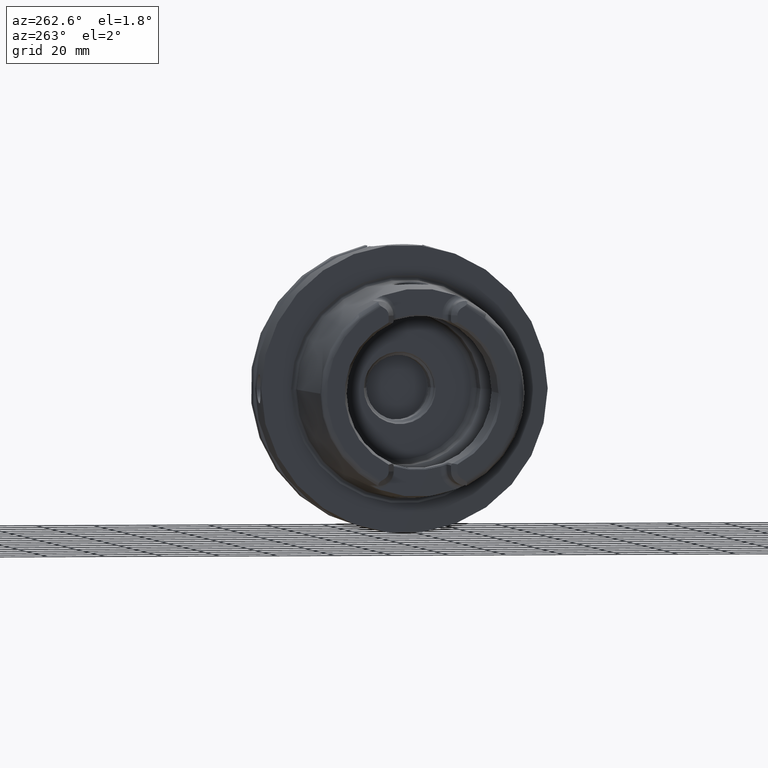
[diagram: clean part render]
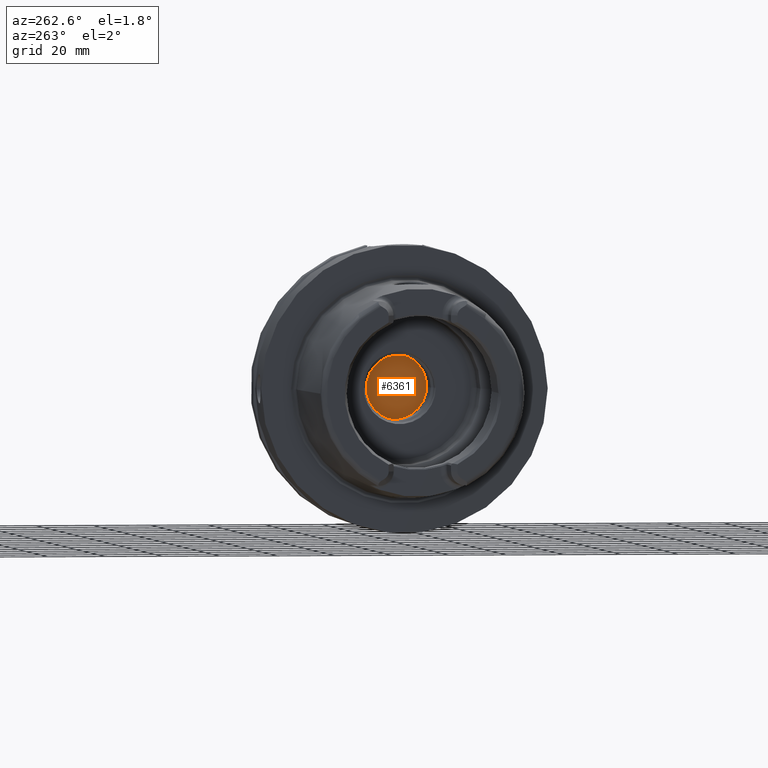
[diagram: same view with one face highlighted and labeled with its STEP entity id]
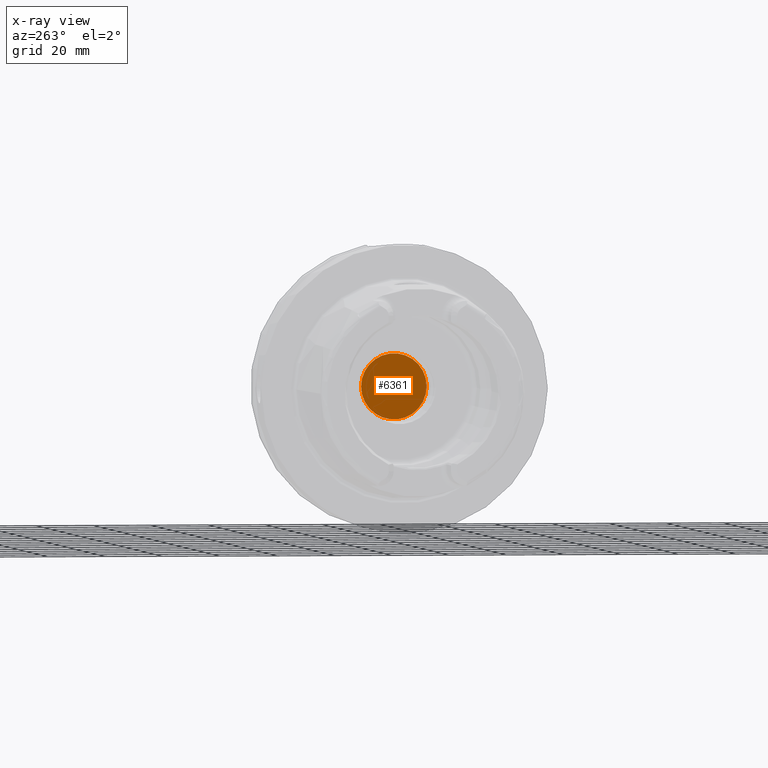
[diagram: x-ray of the same camera — body ghosted, the highlighted face saturated]
A machine part, auxiliary view. The second image highlights one B-rep face of the part: STEP entity #6361.
The next image is the same camera in x-ray: the body ghosted, the highlighted face saturated — about 0% of this face is hidden behind the body in this view.
In plain terms, the highlighted planar face has unit normal (1, 0, 0).
Its self-contained STEP definition (entity closure, byte-faithful):
#2616=CARTESIAN_POINT('',(2.85E1,0.E0,0.E0));
#2617=DIRECTION('',(-1.E0,0.E0,0.E0));
#2618=DIRECTION('',(0.E0,-1.E0,0.E0));
#2619=AXIS2_PLACEMENT_3D('',#2616,#2617,#2618);
#2621=CARTESIAN_POINT('',(2.85E1,0.E0,0.E0));
#2622=DIRECTION('',(1.E0,0.E0,0.E0));
#2623=DIRECTION('',(0.E0,-1.E0,0.E0));
#2624=AXIS2_PLACEMENT_3D('',#2621,#2622,#2623);
#3287=CARTESIAN_POINT('',(2.85E1,-1.145E1,0.E0));
#3288=VERTEX_POINT('',#3287);
#3299=CARTESIAN_POINT('',(2.85E1,1.145E1,0.E0));
#3300=VERTEX_POINT('',#3299);
#6352=CARTESIAN_POINT('',(2.85E1,0.E0,0.E0));
#6353=DIRECTION('',(1.E0,0.E0,0.E0));
#6354=DIRECTION('',(0.E0,-1.E0,0.E0));
#6355=AXIS2_PLACEMENT_3D('',#6352,#6353,#6354);
#6356=PLANE('',#6355);
#6357=ORIENTED_EDGE('',*,*,#6345,.F.);
#6358=ORIENTED_EDGE('',*,*,#6334,.T.);
#6359=EDGE_LOOP('',(#6357,#6358));
#6360=FACE_OUTER_BOUND('',#6359,.F.);
#6361=ADVANCED_FACE('',(#6360),#6356,.F.);
#2620=CIRCLE('',#2619,1.145E1);
#2625=CIRCLE('',#2624,1.145E1);
#6334=EDGE_CURVE('',#3288,#3300,#2625,.T.);
#6345=EDGE_CURVE('',#3288,#3300,#2620,.T.);